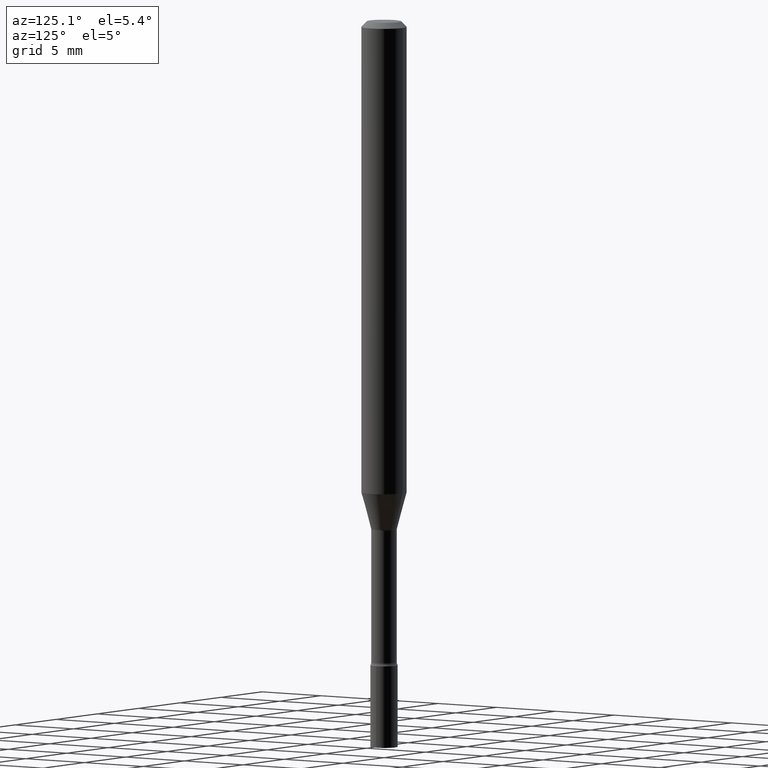
[diagram: clean part render]
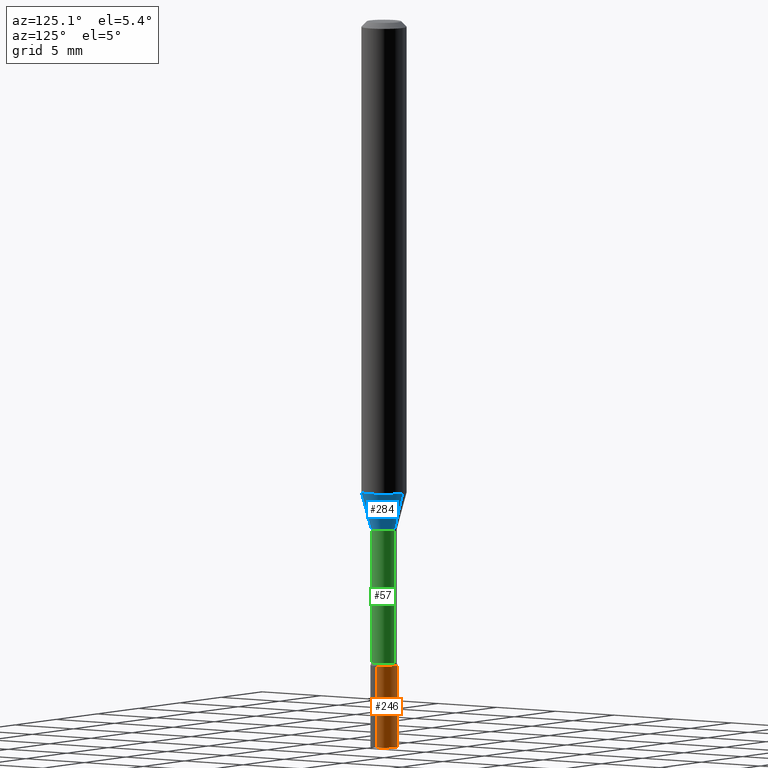
[diagram: same view with three faces highlighted in distinct colors, each labeled with its STEP entity id]
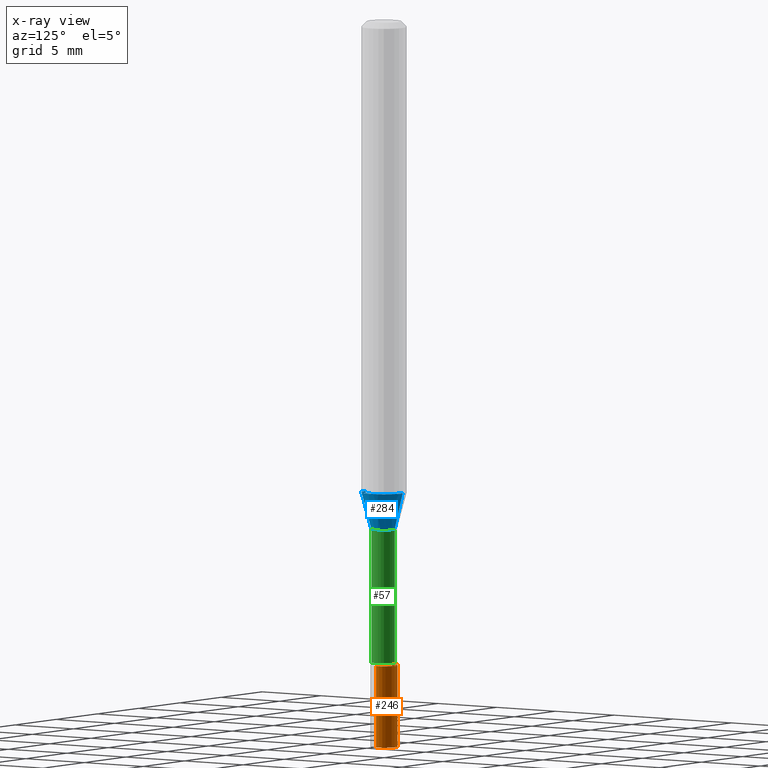
[diagram: x-ray of the same camera — body ghosted, the three highlighted faces saturated]
A machine part, auxiliary view with three faces highlighted in distinct colors.
The next image is the same camera in x-ray (body ghosted, the three faces saturated) — at least one of them is partly hidden behind the body in this view.
Their STEP definitions:

[orange] entity #246 — the highlighted cylindrical surface (edge-blend (fillet) strip) has radius 0.9525 mm, axis along (-0, 0, 1).
#12 = EDGE_LOOP ( 'NONE', ( #207, #153, #401, #475 ) ) ;
#17 = VERTEX_POINT ( 'NONE', #507 ) ;
#19 = VERTEX_POINT ( 'NONE', #29 ) ;
#29 = CARTESIAN_POINT ( 'NONE',  ( -0.03749999999999999861, -6.323717501156401251E-15, -2.000000000000000000 ) ) ;
#35 = CARTESIAN_POINT ( 'NONE',  ( 0.000000000000000000, 0.000000000000000000, 0.000000000000000000 ) ) ;
#36 = EDGE_CURVE ( 'NONE', #289, #286, #298, .T. ) ;
#42 = DIRECTION ( 'NONE',  ( 1.000000000000000000, -6.982962677686266711E-15, 4.876176775795935793E-29 ) ) ;
#69 = AXIS2_PLACEMENT_3D ( 'NONE', #390, #505, #270 ) ;
#80 = EDGE_CURVE ( 'NONE', #17, #19, #320, .T. ) ;
#106 = DIRECTION ( 'NONE',  ( 1.000000000000000000, -6.982962677686268288E-15, 0.000000000000000000 ) ) ;
#114 = EDGE_CURVE ( 'NONE', #19, #286, #469, .T. ) ;
#131 = VECTOR ( 'NONE', #187, 39.37007874015748143 ) ;
#153 = ORIENTED_EDGE ( 'NONE', *, *, #114, .T. ) ;
#154 = DIRECTION ( 'NONE',  ( -2.445468806185136597E-29, 3.491481338843145583E-15, 1.000000000000000000 ) ) ;
#174 = AXIS2_PLACEMENT_3D ( 'NONE', #182, #230, #106 ) ;
#182 = CARTESIAN_POINT ( 'NONE',  ( 4.890937612370273194E-29, -6.982962677686291165E-15, -2.000000000000000000 ) ) ;
#187 = DIRECTION ( 'NONE',  ( -2.445468806185136877E-29, 3.491481338843145188E-15, 1.000000000000000000 ) ) ;
#192 = LINE ( 'NONE', #354, #415 ) ;
#207 = ORIENTED_EDGE ( 'NONE', *, *, #80, .T. ) ;
#230 = DIRECTION ( 'NONE',  ( -2.445468806185136597E-29, 3.491481338843145583E-15, 1.000000000000000000 ) ) ;
#233 = CYLINDRICAL_SURFACE ( 'NONE', #288, 0.03749999999999999861 ) ;
#246 = ADVANCED_FACE ( 'NONE', ( #400 ), #233, .T. ) ;
#270 = DIRECTION ( 'NONE',  ( 1.000000000000000000, -6.982962677686268288E-15, 0.000000000000000000 ) ) ;
#282 = CARTESIAN_POINT ( 'NONE',  ( 0.03749999999999999861, -6.459240476859818795E-15, -1.775000000000000133 ) ) ;
#286 = VERTEX_POINT ( 'NONE', #474 ) ;
#288 = AXIS2_PLACEMENT_3D ( 'NONE', #35, #154, #42 ) ;
#289 = VERTEX_POINT ( 'NONE', #282 ) ;
#298 = CIRCLE ( 'NONE', #69, 0.03749999999999999861 ) ;
#315 = EDGE_CURVE ( 'NONE', #17, #289, #192, .T. ) ;
#320 = CIRCLE ( 'NONE', #174, 0.03749999999999999861 ) ;
#354 = CARTESIAN_POINT ( 'NONE',  ( 0.03749999999999999861, -2.618611004132350016E-16, 1.828566290923475922E-30 ) ) ;
#390 = CARTESIAN_POINT ( 'NONE',  ( 4.340707130978617347E-29, -6.197379376446583794E-15, -1.775000000000000133 ) ) ;
#400 = FACE_OUTER_BOUND ( 'NONE', #12, .T. ) ;
#401 = ORIENTED_EDGE ( 'NONE', *, *, #36, .F. ) ;
#415 = VECTOR ( 'NONE', #482, 39.37007874015748143 ) ;
#463 = CARTESIAN_POINT ( 'NONE',  ( -0.03749999999999999861, 2.664535259100375598E-16, -1.844600658845589458E-30 ) ) ;
#469 = LINE ( 'NONE', #463, #131 ) ;
#474 = CARTESIAN_POINT ( 'NONE',  ( -0.03749999999999999861, -6.323717501156401251E-15, -1.775000000000000133 ) ) ;
#475 = ORIENTED_EDGE ( 'NONE', *, *, #315, .F. ) ;
#482 = DIRECTION ( 'NONE',  ( -2.445468806185136877E-29, 3.491481338843145188E-15, 1.000000000000000000 ) ) ;
#505 = DIRECTION ( 'NONE',  ( -2.445468806185136597E-29, 3.491481338843145583E-15, 1.000000000000000000 ) ) ;
#507 = CARTESIAN_POINT ( 'NONE',  ( 0.03749999999999999861, -7.244823778099525378E-15, -2.000000000000000000 ) ) ;

[blue] entity #284 — the highlighted conical surface has half-angle 15 deg.
#9 = VERTEX_POINT ( 'NONE', #94 ) ;
#13 = EDGE_CURVE ( 'NONE', #376, #9, #486, .T. ) ;
#21 = DIRECTION ( 'NONE',  ( -6.982962677686265922E-15, -1.000000000000000000, 4.370956789862821150E-15 ) ) ;
#38 = AXIS2_PLACEMENT_3D ( 'NONE', #119, #472, #78 ) ;
#39 = VECTOR ( 'NONE', #410, 39.37007874015748143 ) ;
#78 = DIRECTION ( 'NONE',  ( -6.982962677686266711E-15, -1.000000000000000000, 0.000000000000000000 ) ) ;
#94 = CARTESIAN_POINT ( 'NONE',  ( -4.364351673553601150E-16, -0.06250000000000456579, -1.298301615493748118 ) ) ;
#116 = LINE ( 'NONE', #160, #318 ) ;
#119 = CARTESIAN_POINT ( 'NONE',  ( 3.418975340448834003E-29, -4.881437166405555693E-15, -1.398092501787273179 ) ) ;
#147 = EDGE_CURVE ( 'NONE', #9, #156, #172, .T. ) ;
#150 = DIRECTION ( 'NONE',  ( -6.982962677686266711E-15, -1.000000000000000000, 0.000000000000000000 ) ) ;
#156 = VERTEX_POINT ( 'NONE', #343 ) ;
#160 = CARTESIAN_POINT ( 'NONE',  ( 2.540979878465690730E-16, 0.03576111260565909694, -1.398092501787273179 ) ) ;
#163 = CARTESIAN_POINT ( 'NONE',  ( -2.497185146378532502E-16, -0.03576111260566886690, -1.398092501787273179 ) ) ;
#164 = AXIS2_PLACEMENT_3D ( 'NONE', #222, #380, #21 ) ;
#169 = EDGE_CURVE ( 'NONE', #376, #340, #397, .T. ) ;
#172 = CIRCLE ( 'NONE', #164, 0.06250000000000000000 ) ;
#185 = EDGE_CURVE ( 'NONE', #340, #156, #116, .T. ) ;
#195 = EDGE_LOOP ( 'NONE', ( #239, #301, #368, #213 ) ) ;
#200 = FACE_OUTER_BOUND ( 'NONE', #195, .T. ) ;
#213 = ORIENTED_EDGE ( 'NONE', *, *, #13, .F. ) ;
#222 = CARTESIAN_POINT ( 'NONE',  ( 3.174941001517083713E-29, -4.533017487021651812E-15, -1.298301615493748340 ) ) ;
#239 = ORIENTED_EDGE ( 'NONE', *, *, #169, .T. ) ;
#255 = CARTESIAN_POINT ( 'NONE',  ( -2.497185146378532502E-16, -0.03576111260566886690, -1.398092501787273179 ) ) ;
#284 = ADVANCED_FACE ( 'NONE', ( #200 ), #466, .T. ) ;
#287 = CARTESIAN_POINT ( 'NONE',  ( 3.418975340448834003E-29, -4.881437166405555693E-15, -1.398092501787273179 ) ) ;
#301 = ORIENTED_EDGE ( 'NONE', *, *, #185, .T. ) ;
#318 = VECTOR ( 'NONE', #431, 39.37007874015748854 ) ;
#340 = VERTEX_POINT ( 'NONE', #451 ) ;
#343 = CARTESIAN_POINT ( 'NONE',  ( 4.440892098500940720E-16, 0.06249999999999543421, -1.298301615493748562 ) ) ;
#365 = DIRECTION ( 'NONE',  ( -2.445457175457371238E-29, 3.491497994707285669E-15, 1.000000000000000000 ) ) ;
#368 = ORIENTED_EDGE ( 'NONE', *, *, #147, .F. ) ;
#376 = VERTEX_POINT ( 'NONE', #163 ) ;
#380 = DIRECTION ( 'NONE',  ( -2.445457175457371238E-29, 3.491497994707285669E-15, 1.000000000000000000 ) ) ;
#383 = AXIS2_PLACEMENT_3D ( 'NONE', #287, #365, #150 ) ;
#397 = CIRCLE ( 'NONE', #38, 0.03576111260566398192 ) ;
#410 = DIRECTION ( 'NONE',  ( -1.807323732225327773E-15, -0.2588190451025178529, 0.9659258262890690894 ) ) ;
#431 = DIRECTION ( 'NONE',  ( 1.839019923739597554E-15, 0.2588190451025245697, 0.9659258262890670910 ) ) ;
#451 = CARTESIAN_POINT ( 'NONE',  ( 3.490935988483317697E-16, 0.03576111260565909694, -1.398092501787273179 ) ) ;
#466 = CONICAL_SURFACE ( 'NONE', #383, 0.03576111260566398192, 0.2617993877991499074 ) ;
#472 = DIRECTION ( 'NONE',  ( -2.445457175457371238E-29, 3.491497994707285669E-15, 1.000000000000000000 ) ) ;
#486 = LINE ( 'NONE', #255, #39 ) ;

[green] entity #57 — the highlighted cylindrical surface (edge-blend (fillet) strip) has radius 0.8954 mm, axis along (-0, 0, 1).
#14 = EDGE_CURVE ( 'NONE', #516, #52, #217, .T. ) ;
#16 = VECTOR ( 'NONE', #444, 39.37007874015748143 ) ;
#23 = FACE_OUTER_BOUND ( 'NONE', #140, .T. ) ;
#26 = DIRECTION ( 'NONE',  ( -6.982962677686265133E-15, -1.000000000000000000, 0.000000000000000000 ) ) ;
#30 = AXIS2_PLACEMENT_3D ( 'NONE', #148, #422, #349 ) ;
#32 = EDGE_CURVE ( 'NONE', #82, #403, #253, .T. ) ;
#51 = AXIS2_PLACEMENT_3D ( 'NONE', #353, #275, #457 ) ;
#52 = VERTEX_POINT ( 'NONE', #113 ) ;
#57 = ADVANCED_FACE ( 'NONE', ( #23 ), #109, .T. ) ;
#75 = CARTESIAN_POINT ( 'NONE',  ( 3.428469303813700067E-29, -4.894992159060069761E-15, -1.401974787463811101 ) ) ;
#82 = VERTEX_POINT ( 'NONE', #427 ) ;
#96 = CARTESIAN_POINT ( 'NONE',  ( 2.584599201327798623E-16, 0.03524999999999389733, -1.767098259685360606 ) ) ;
#109 = CYLINDRICAL_SURFACE ( 'NONE', #51, 0.03525000000000003131 ) ;
#113 = CARTESIAN_POINT ( 'NONE',  ( 2.504663143554786295E-16, 0.03524999999999509775, -1.401974787463811101 ) ) ;
#140 = EDGE_LOOP ( 'NONE', ( #450, #332, #436, #337 ) ) ;
#148 = CARTESIAN_POINT ( 'NONE',  ( 4.321363118885798981E-29, -6.169820030142171405E-15, -1.767098259685360606 ) ) ;
#217 = CIRCLE ( 'NONE', #264, 0.03524999999999999661 ) ;
#221 = EDGE_CURVE ( 'NONE', #82, #516, #279, .T. ) ;
#236 = CARTESIAN_POINT ( 'NONE',  ( -2.461494343884410751E-16, -0.03525000000000003131, 1.230753043134319234E-16 ) ) ;
#245 = DIRECTION ( 'NONE',  ( -2.445457175457371518E-29, 3.491497994707285669E-15, 1.000000000000000000 ) ) ;
#253 = CIRCLE ( 'NONE', #30, 0.03525000000000006600 ) ;
#264 = AXIS2_PLACEMENT_3D ( 'NONE', #75, #310, #26 ) ;
#275 = DIRECTION ( 'NONE',  ( -2.445457175457371238E-29, 3.491497994707285669E-15, 1.000000000000000000 ) ) ;
#278 = VECTOR ( 'NONE', #245, 39.37007874015748143 ) ;
#279 = LINE ( 'NONE', #236, #278 ) ;
#293 = LINE ( 'NONE', #441, #16 ) ;
#310 = DIRECTION ( 'NONE',  ( -2.445457175457371238E-29, 3.491497994707285669E-15, 1.000000000000000000 ) ) ;
#332 = ORIENTED_EDGE ( 'NONE', *, *, #413, .T. ) ;
#337 = ORIENTED_EDGE ( 'NONE', *, *, #221, .F. ) ;
#349 = DIRECTION ( 'NONE',  ( -6.982962677686266711E-15, -1.000000000000000000, 0.000000000000000000 ) ) ;
#353 = CARTESIAN_POINT ( 'NONE',  ( 0.000000000000000000, 0.000000000000000000, 0.000000000000000000 ) ) ;
#403 = VERTEX_POINT ( 'NONE', #96 ) ;
#413 = EDGE_CURVE ( 'NONE', #403, #52, #293, .T. ) ;
#422 = DIRECTION ( 'NONE',  ( -2.445457175457371238E-29, 3.491497994707285669E-15, 1.000000000000000000 ) ) ;
#427 = CARTESIAN_POINT ( 'NONE',  ( -2.461494343883981315E-16, -0.03525000000000623468, -1.767098259685360606 ) ) ;
#436 = ORIENTED_EDGE ( 'NONE', *, *, #14, .F. ) ;
#441 = CARTESIAN_POINT ( 'NONE',  ( 2.504663143554354887E-16, 0.03525000000000003131, -1.230753043134319234E-16 ) ) ;
#444 = DIRECTION ( 'NONE',  ( -2.445457175457371518E-29, 3.491497994707285669E-15, 1.000000000000000000 ) ) ;
#450 = ORIENTED_EDGE ( 'NONE', *, *, #32, .T. ) ;
#453 = CARTESIAN_POINT ( 'NONE',  ( -2.461494343884065624E-16, -0.03525000000000488853, -1.401974787463811101 ) ) ;
#457 = DIRECTION ( 'NONE',  ( -6.982962677686265133E-15, -1.000000000000000000, 3.491497994707285669E-15 ) ) ;
#516 = VERTEX_POINT ( 'NONE', #453 ) ;